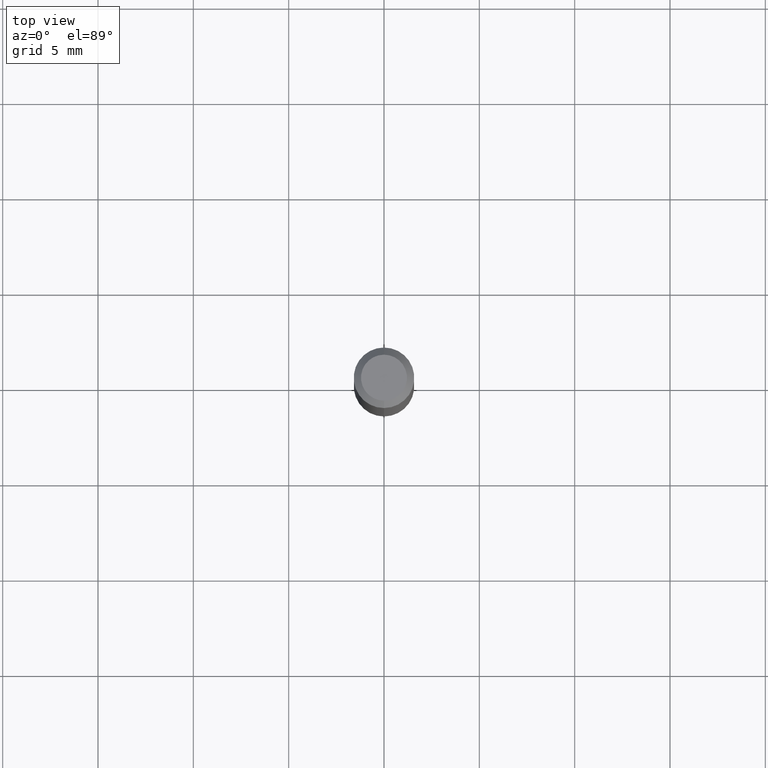
[diagram: clean part render]
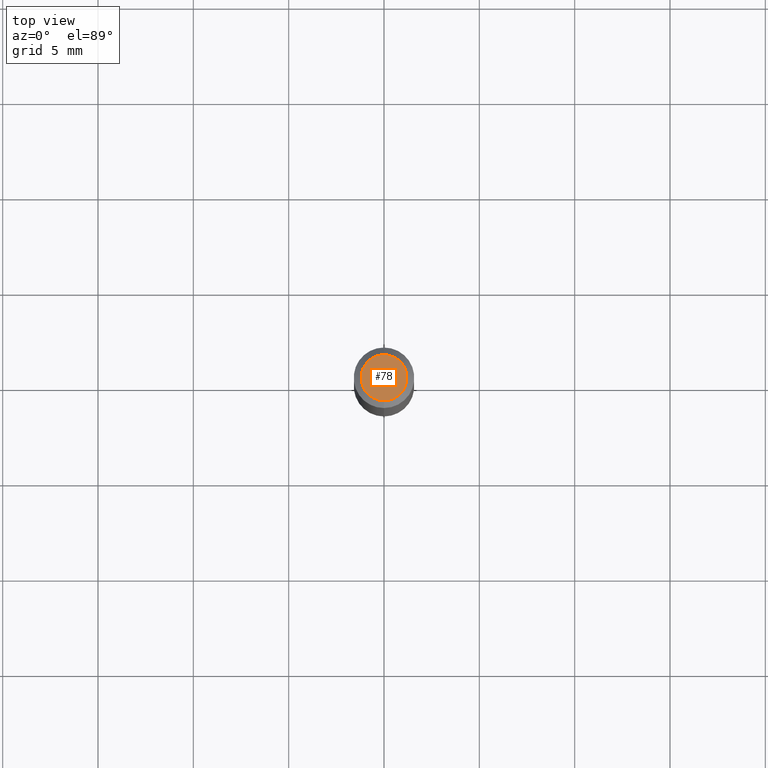
[diagram: same view with one face highlighted and labeled with its STEP entity id]
A machine part, top view. The second image highlights one B-rep face of the part: STEP entity #78.
In plain terms, the highlighted planar face has unit normal (0, -0, -1).
Its self-contained STEP definition (entity closure, byte-faithful):
#55 = DIRECTION ( 'NONE',  ( 2.445561478799539239E-29, -3.491348626384722725E-15, -1.000000000000000000 ) ) ;
#63 = CARTESIAN_POINT ( 'NONE',  ( 2.024226748635264408E-45, -2.888572993736515430E-31, -8.275333591332038235E-17 ) ) ;
#75 = AXIS2_PLACEMENT_3D ( 'NONE', #346, #55, #547 ) ;
#78 = ADVANCED_FACE ( 'NONE', ( #108 ), #164, .F. ) ;
#94 = EDGE_LOOP ( 'NONE', ( #142, #436 ) ) ;
#108 = FACE_OUTER_BOUND ( 'NONE', #94, .T. ) ;
#134 = VERTEX_POINT ( 'NONE', #253 ) ;
#135 = DIRECTION ( 'NONE',  ( -2.445561478799539239E-29, 3.491348626384723119E-15, 1.000000000000000000 ) ) ;
#142 = ORIENTED_EDGE ( 'NONE', *, *, #522, .T. ) ;
#164 = PLANE ( 'NONE',  #75 ) ;
#168 = AXIS2_PLACEMENT_3D ( 'NONE', #533, #135, #320 ) ;
#199 = CARTESIAN_POINT ( 'NONE',  ( -3.773273898774340269E-16, -0.04749999999999999362, 8.308572383995396038E-17 ) ) ;
#237 = CIRCLE ( 'NONE', #293, 0.04749999999999999362 ) ;
#253 = CARTESIAN_POINT ( 'NONE',  ( 3.840629472727447874E-16, 0.04749999999999999362, -2.485923956665947374E-16 ) ) ;
#259 = DIRECTION ( 'NONE',  ( -2.445561478799539239E-29, 3.491348626384723119E-15, 1.000000000000000000 ) ) ;
#271 = EDGE_CURVE ( 'NONE', #458, #134, #415, .T. ) ;
#293 = AXIS2_PLACEMENT_3D ( 'NONE', #63, #259, #404 ) ;
#320 = DIRECTION ( 'NONE',  ( -6.982962677686266711E-15, -1.000000000000000000, 3.491348626384723119E-15 ) ) ;
#346 = CARTESIAN_POINT ( 'NONE',  ( 3.316907271900976096E-16, 0.04749999999999999362, 3.182097173568844225E-17 ) ) ;
#404 = DIRECTION ( 'NONE',  ( -6.982962677686266711E-15, -1.000000000000000000, 3.491348626384723119E-15 ) ) ;
#415 = CIRCLE ( 'NONE', #168, 0.04749999999999999362 ) ;
#436 = ORIENTED_EDGE ( 'NONE', *, *, #271, .T. ) ;
#458 = VERTEX_POINT ( 'NONE', #199 ) ;
#522 = EDGE_CURVE ( 'NONE', #134, #458, #237, .T. ) ;
#533 = CARTESIAN_POINT ( 'NONE',  ( 2.024226748635264408E-45, -2.888572993736515430E-31, -8.275333591332038235E-17 ) ) ;
#547 = DIRECTION ( 'NONE',  ( 6.982962677686265922E-15, 1.000000000000000000, -3.491348626384722725E-15 ) ) ;